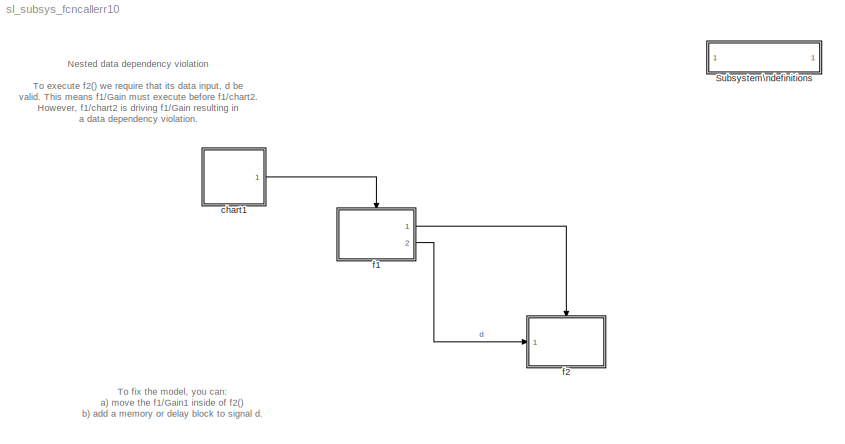
MODEL sl_subsys_fcncallerr10
KIND model
BLOCK [SubSystem]  Subsystem\ndefinitions
  MaskDisplay = disp('Subsystem\\ndefinitions')\n\n
  MaskIconFrame = on
  MaskIconOpaque = on
  MaskIconRotate = none
  MaskIconUnits = autoscale
  MinAlgLoopOccurrences = off
  OpenFcn = helpview([matlabroot,'/toolbox/simulink/simdemos/sl_subsys_definitions.html']);
  Ports = []
  PropExecContextAcrossSSBoundary = on
  RTWSystemCode = Auto
  TreatAsAtomicUnit = off
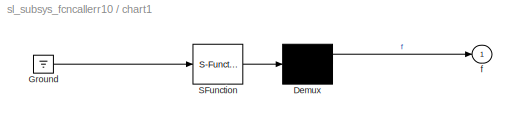
BLOCK [SubSystem] chart1
  MaskDescription = Stateflow diagram
  MaskDisplay = plot(sf('Private','sfblk','xIcon'),sf('Private','sfblk','yIcon'));text(0.5,0,sf('Private', 'sfblk', 'tIcon'),'HorizontalAl','Center','VerticalAl','Bottom');
  MaskIconFrame = off
  MaskIconOpaque = off
  MaskIconRotate = none
  MaskIconUnits = autoscale
  MaskSelfModifiable = on
  MaskType = Stateflow
  MinAlgLoopOccurrences = off
  Ports = [0, 1]
  PropExecContextAcrossSSBoundary = on
  RTWSystemCode = Auto
  TreatAsAtomicUnit = off
BLOCK [Demux] chart1/ Demux 
  Outputs = 1
  Ports = [1, 1]
BLOCK [Ground] chart1/ Ground 
BLOCK [S-Function] chart1/ SFunction 
  FunctionName = sf_sfun
  PortCounts = [1 1]
  Ports = [1, 1]
  Tag = Stateflow S-Function sl_subsys_fcncallerr10 2
BLOCK [Outport] chart1/f
  IconDisplay = Port number
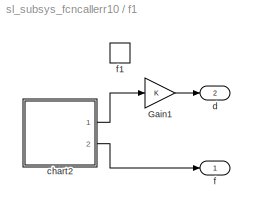
BLOCK [SubSystem] f1
  MinAlgLoopOccurrences = off
  Ports = [0, 2, 0, 1]
  PropExecContextAcrossSSBoundary = on
  RTWSystemCode = Auto
  TreatAsAtomicUnit = on
BLOCK [Gain] f1/Gain1
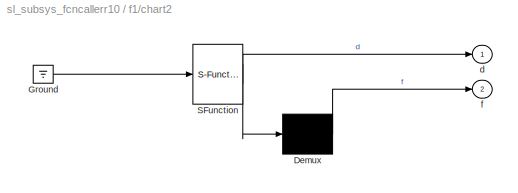
BLOCK [SubSystem] f1/chart2
  MaskDescription = Stateflow diagram
  MaskDisplay = plot(sf('Private','sfblk','xIcon'),sf('Private','sfblk','yIcon'));text(0.5,0,sf('Private', 'sfblk', 'tIcon'),'HorizontalAl','Center','VerticalAl','Bottom');
  MaskIconFrame = off
  MaskIconOpaque = off
  MaskIconRotate = none
  MaskIconUnits = autoscale
  MaskSelfModifiable = on
  MaskType = Stateflow
  MinAlgLoopOccurrences = off
  Ports = [0, 2]
  PropExecContextAcrossSSBoundary = on
  RTWSystemCode = Auto
  TreatAsAtomicUnit = off
BLOCK [Demux] f1/chart2/ Demux 
  Outputs = 1
  Ports = [1, 1]
BLOCK [Ground] f1/chart2/ Ground 
BLOCK [S-Function] f1/chart2/ SFunction 
  FunctionName = sf_sfun
  PortCounts = [1 2]
  Ports = [1, 2]
  Tag = Stateflow S-Function sl_subsys_fcncallerr10 3
BLOCK [Outport] f1/chart2/d
  IconDisplay = Port number
BLOCK [Outport] f1/chart2/f
  IconDisplay = Port number
  Port = 2
BLOCK [Outport] f1/d
  IconDisplay = Port number
  Port = 2
BLOCK [Outport] f1/f
  IconDisplay = Port number
BLOCK [TriggerPort] f1/f1
  Ports = []
  TriggerType = function-call
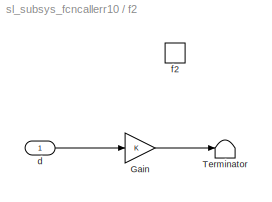
BLOCK [SubSystem] f2
  MinAlgLoopOccurrences = off
  Ports = [1, 0, 0, 1]
  PropExecContextAcrossSSBoundary = on
  RTWSystemCode = Auto
  TreatAsAtomicUnit = on
BLOCK [Gain] f2/Gain
BLOCK [Terminator] f2/Terminator
BLOCK [Inport] f2/d
  IconDisplay = Port number
  LatchInput = off
  Port = 1
BLOCK [TriggerPort] f2/f2
  Ports = []
  TriggerType = function-call
ANNOTATION (root): Nested data dependency violation\n\nTo execute f2() we require that its data input, d be \nvalid. This means f1/Gain must execute before f1/chart2.\nHowever, f1/chart2 is driving f1/Gain resulting in\na data dependency violation.
ANNOTATION (root): To fix the model, you can:\na) move the f1/Gain1 inside of f2()\nb) add a memory or delay block to signal d.
LINE chart1/ Demux :1 -> chart1/f:1
LINE chart1/ Ground :1 -> chart1/ SFunction :1
LINE chart1/ SFunction :1 -> chart1/ Demux :1
LINE chart1:1 -> f1:trigger
LINE f1/Gain1:1 -> f1/d:1
LINE f1/chart2/ Demux :1 -> f1/chart2/f:1
LINE f1/chart2/ Ground :1 -> f1/chart2/ SFunction :1
LINE f1/chart2/ SFunction :1 -> f1/chart2/ Demux :1
LINE f1/chart2/ SFunction :2 -> f1/chart2/d:1
LINE f1/chart2:1 -> f1/Gain1:1
LINE f1/chart2:2 -> f1/f:1
LINE f1:1 -> f2:trigger
LINE f1:2 -> f2:1
LINE f2/Gain:1 -> f2/Terminator:1
LINE f2/d:1 -> f2/Gain:1
CHART chart1 states=2 transitions=3
  STATE_LABEL 'one/\\nentry: f;'
  STATE_LABEL 'two/\\nentry: f;'
CHART f1/chart2 states=2 transitions=3
  STATE_LABEL 'one/\\nentry: f; d=1;'
  STATE_LABEL 'two/\\nentry: f; d=2;'
